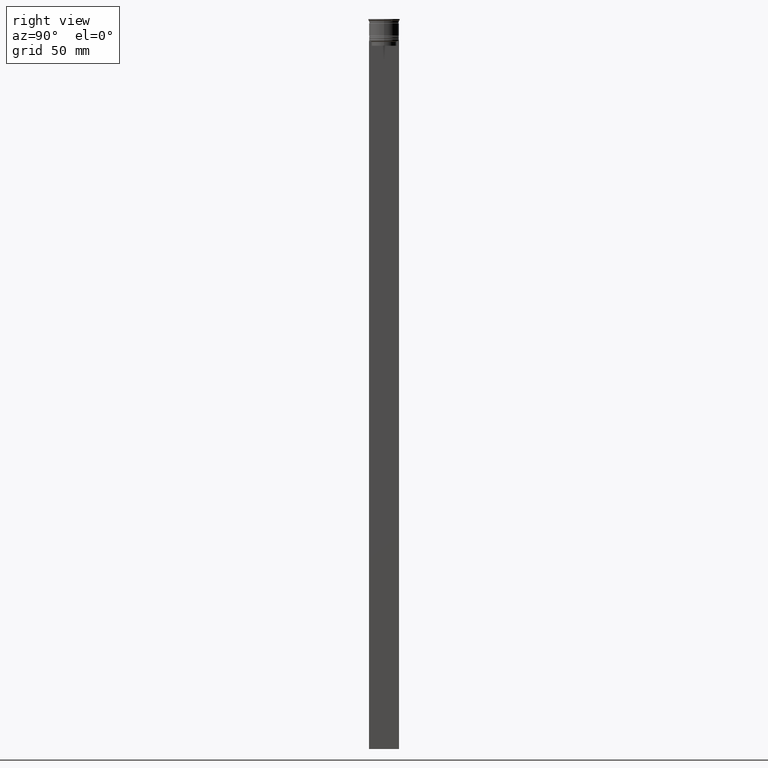
[diagram: clean part render]
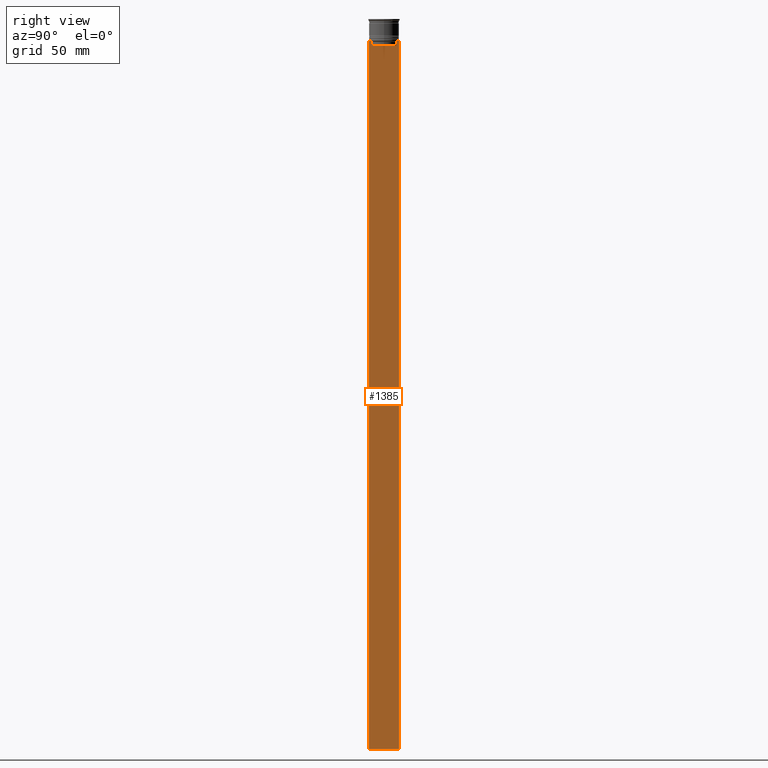
[diagram: same view with one face highlighted and labeled with its STEP entity id]
A machine part, right view. The second image highlights one B-rep face of the part: STEP entity #1385.
In plain terms, the highlighted planar face has unit normal (-1, 0, 0).
Its self-contained STEP definition (entity closure, byte-faithful):
#11 = LINE ( 'NONE', #25, #2447 ) ;
#21 = VECTOR ( 'NONE', #2558, 1000.000000000000000 ) ;
#25 = CARTESIAN_POINT ( 'NONE',  ( 0.5000000000000000000, -9.500000000000001776, -14.00000000000000178 ) ) ;
#28 = B_SPLINE_CURVE_WITH_KNOTS ( 'NONE', 3,
 ( #229, #632, #2486, #1242 ),
 .UNSPECIFIED., .F., .F.,
 ( 4, 4 ),
 ( 0.01426761478740281447, 0.01497538974438914448 ),
 .UNSPECIFIED. ) ;
#53 = EDGE_CURVE ( 'NONE', #308, #1341, #11, .T. ) ;
#92 = EDGE_LOOP ( 'NONE', ( #1950, #1240, #207, #1700, #2353, #368, #998, #547, #2088, #1033, #2392, #200 ) ) ;
#102 = VERTEX_POINT ( 'NONE', #1649 ) ;
#131 = EDGE_CURVE ( 'NONE', #255, #2475, #28, .T. ) ;
#172 = CARTESIAN_POINT ( 'NONE',  ( 0.5000000000000000000, 9.499999999999998224, -14.00000000000000178 ) ) ;
#196 = CARTESIAN_POINT ( 'NONE',  ( 0.5000000000000000000, -7.884161337770803080, -17.00000000000000000 ) ) ;
#200 = ORIENTED_EDGE ( 'NONE', *, *, #53, .T. ) ;
#205 = FACE_OUTER_BOUND ( 'NONE', #92, .T. ) ;
#207 = ORIENTED_EDGE ( 'NONE', *, *, #2519, .T. ) ;
#229 = CARTESIAN_POINT ( 'NONE',  ( 0.5000000000000000000, 8.385105843100605583, -14.00000000000000178 ) ) ;
#237 = DIRECTION ( 'NONE',  ( 0.000000000000000000, 0.000000000000000000, -1.000000000000000000 ) ) ;
#255 = VERTEX_POINT ( 'NONE', #1628 ) ;
#300 = CARTESIAN_POINT ( 'NONE',  ( 0.5000000000000000000, 7.884161337770803080, 0.000000000000000000 ) ) ;
#307 = VERTEX_POINT ( 'NONE', #196 ) ;
#308 = VERTEX_POINT ( 'NONE', #172 ) ;
#312 = CARTESIAN_POINT ( 'NONE',  ( 0.5000000000000000000, -9.500000000000001776, -14.00000000000000178 ) ) ;
#314 = CARTESIAN_POINT ( 'NONE',  ( 0.5000000000000000000, 7.899999999999994138, -17.00000000000000000 ) ) ;
#319 = VERTEX_POINT ( 'NONE', #2438 ) ;
#330 = VECTOR ( 'NONE', #507, 1000.000000000000000 ) ;
#351 = VERTEX_POINT ( 'NONE', #1461 ) ;
#364 = EDGE_CURVE ( 'NONE', #307, #2237, #1434, .T. ) ;
#368 = ORIENTED_EDGE ( 'NONE', *, *, #610, .T. ) ;
#409 = DIRECTION ( 'NONE',  ( 0.000000000000000000, 0.000000000000000000, 1.000000000000000000 ) ) ;
#412 = LINE ( 'NONE', #649, #1315 ) ;
#424 = VECTOR ( 'NONE', #1655, 1000.000000000000000 ) ;
#486 = EDGE_CURVE ( 'NONE', #1341, #255, #920, .T. ) ;
#507 = DIRECTION ( 'NONE',  ( 0.000000000000000000, -1.000000000000000000, 0.000000000000000000 ) ) ;
#547 = ORIENTED_EDGE ( 'NONE', *, *, #1475, .T. ) ;
#549 = CARTESIAN_POINT ( 'NONE',  ( 0.5000000000000000000, -7.884161337770803080, -14.50000000000000000 ) ) ;
#561 = CARTESIAN_POINT ( 'NONE',  ( 0.5000000000000000000, -7.884161337770803080, -14.50000000000000000 ) ) ;
#570 = PLANE ( 'NONE',  #1073 ) ;
#603 = CARTESIAN_POINT ( 'NONE',  ( 0.5000000000000000000, 9.499999999999998224, -464.0000000000000000 ) ) ;
#610 = EDGE_CURVE ( 'NONE', #2237, #2618, #2251, .T. ) ;
#632 = CARTESIAN_POINT ( 'NONE',  ( 0.5000000000000000000, 8.218133718559618828, -14.16667606394327983 ) ) ;
#649 = CARTESIAN_POINT ( 'NONE',  ( 0.5000000000000000000, 9.499999999999998224, 5.026297590440445440 ) ) ;
#660 = LINE ( 'NONE', #300, #2523 ) ;
#710 = EDGE_CURVE ( 'NONE', #2618, #351, #1098, .T. ) ;
#774 = CARTESIAN_POINT ( 'NONE',  ( 0.5000000000000000000, -8.051152795888546265, -14.33334334204685057 ) ) ;
#920 = LINE ( 'NONE', #312, #330 ) ;
#923 = EDGE_CURVE ( 'NONE', #319, #1611, #1526, .T. ) ;
#998 = ORIENTED_EDGE ( 'NONE', *, *, #710, .T. ) ;
#1033 = ORIENTED_EDGE ( 'NONE', *, *, #923, .T. ) ;
#1073 = AXIS2_PLACEMENT_3D ( 'NONE', #2263, #2422, #409 ) ;
#1098 = LINE ( 'NONE', #1905, #1849 ) ;
#1124 = CARTESIAN_POINT ( 'NONE',  ( 0.5000000000000000000, 7.884161337770803080, -14.50000000000000000 ) ) ;
#1147 = CARTESIAN_POINT ( 'NONE',  ( 0.5000000000000000000, 9.386692708297204035, -14.00000000000000178 ) ) ;
#1217 = DIRECTION ( 'NONE',  ( 0.000000000000000000, -1.000000000000000000, 0.000000000000000000 ) ) ;
#1240 = ORIENTED_EDGE ( 'NONE', *, *, #131, .T. ) ;
#1242 = CARTESIAN_POINT ( 'NONE',  ( 0.5000000000000000000, 7.884161337770803080, -14.50000000000000000 ) ) ;
#1298 = DIRECTION ( 'NONE',  ( 0.000000000000000000, 0.000000000000000000, -1.000000000000000000 ) ) ;
#1315 = VECTOR ( 'NONE', #2295, 1000.000000000000000 ) ;
#1341 = VERTEX_POINT ( 'NONE', #1147 ) ;
#1359 = CARTESIAN_POINT ( 'NONE',  ( 0.5000000000000000000, -8.218133703942523738, -14.16667607853445787 ) ) ;
#1362 = CARTESIAN_POINT ( 'NONE',  ( 0.5000000000000000000, -9.500000000000001776, -464.0000000000000000 ) ) ;
#1376 = DIRECTION ( 'NONE',  ( 0.000000000000000000, -1.000000000000000000, 0.000000000000000000 ) ) ;
#1385 = ADVANCED_FACE ( 'NONE', ( #205 ), #570, .F. ) ;
#1434 = LINE ( 'NONE', #1904, #424 ) ;
#1448 = LINE ( 'NONE', #2507, #2271 ) ;
#1461 = CARTESIAN_POINT ( 'NONE',  ( 0.5000000000000000000, -9.386692708297204035, -14.00000000000000178 ) ) ;
#1463 = CARTESIAN_POINT ( 'NONE',  ( 0.5000000000000000000, -9.500000000000001776, -14.00000000000000178 ) ) ;
#1475 = EDGE_CURVE ( 'NONE', #351, #2043, #1580, .T. ) ;
#1526 = LINE ( 'NONE', #1362, #2580 ) ;
#1580 = LINE ( 'NONE', #2408, #2113 ) ;
#1611 = VERTEX_POINT ( 'NONE', #603 ) ;
#1628 = CARTESIAN_POINT ( 'NONE',  ( 0.5000000000000000000, 8.385105843100605583, -14.00000000000000178 ) ) ;
#1649 = CARTESIAN_POINT ( 'NONE',  ( 0.5000000000000000000, 7.884161337770803080, -17.00000000000000000 ) ) ;
#1655 = DIRECTION ( 'NONE',  ( -0.000000000000000000, -0.000000000000000000, 1.000000000000000000 ) ) ;
#1660 = CARTESIAN_POINT ( 'NONE',  ( 0.5000000000000000000, -8.385105843100605583, -14.00000000000000178 ) ) ;
#1668 = DIRECTION ( 'NONE',  ( 0.000000000000000000, -1.000000000000000000, 0.000000000000000000 ) ) ;
#1700 = ORIENTED_EDGE ( 'NONE', *, *, #2129, .T. ) ;
#1734 = DIRECTION ( 'NONE',  ( 0.000000000000000000, 1.000000000000000000, 0.000000000000000000 ) ) ;
#1849 = VECTOR ( 'NONE', #1668, 1000.000000000000000 ) ;
#1904 = CARTESIAN_POINT ( 'NONE',  ( 0.5000000000000000000, -7.884161337770803080, 0.000000000000000000 ) ) ;
#1905 = CARTESIAN_POINT ( 'NONE',  ( 0.5000000000000000000, -9.500000000000001776, -14.00000000000000178 ) ) ;
#1950 = ORIENTED_EDGE ( 'NONE', *, *, #486, .T. ) ;
#1994 = CARTESIAN_POINT ( 'NONE',  ( 0.5000000000000000000, -8.385105843100605583, -14.00000000000000178 ) ) ;
#2005 = EDGE_CURVE ( 'NONE', #2043, #319, #1448, .T. ) ;
#2043 = VERTEX_POINT ( 'NONE', #1463 ) ;
#2088 = ORIENTED_EDGE ( 'NONE', *, *, #2005, .T. ) ;
#2113 = VECTOR ( 'NONE', #1376, 1000.000000000000000 ) ;
#2129 = EDGE_CURVE ( 'NONE', #102, #307, #2517, .T. ) ;
#2237 = VERTEX_POINT ( 'NONE', #549 ) ;
#2251 = B_SPLINE_CURVE_WITH_KNOTS ( 'NONE', 3,
 ( #561, #774, #1359, #1994 ),
 .UNSPECIFIED., .F., .F.,
 ( 4, 4 ),
 ( 0.03673372442973153046, 0.03744389749832059688 ),
 .UNSPECIFIED. ) ;
#2263 = CARTESIAN_POINT ( 'NONE',  ( 0.5000000000000000000, -9.500000000000001776, 5.026297590440445440 ) ) ;
#2271 = VECTOR ( 'NONE', #237, 1000.000000000000000 ) ;
#2295 = DIRECTION ( 'NONE',  ( 0.000000000000000000, 0.000000000000000000, -1.000000000000000000 ) ) ;
#2353 = ORIENTED_EDGE ( 'NONE', *, *, #364, .T. ) ;
#2392 = ORIENTED_EDGE ( 'NONE', *, *, #2428, .F. ) ;
#2408 = CARTESIAN_POINT ( 'NONE',  ( 0.5000000000000000000, -9.500000000000001776, -14.00000000000000178 ) ) ;
#2422 = DIRECTION ( 'NONE',  ( -1.000000000000000000, 0.000000000000000000, 0.000000000000000000 ) ) ;
#2428 = EDGE_CURVE ( 'NONE', #308, #1611, #412, .T. ) ;
#2438 = CARTESIAN_POINT ( 'NONE',  ( 0.5000000000000000000, -9.500000000000001776, -464.0000000000000000 ) ) ;
#2447 = VECTOR ( 'NONE', #1217, 1000.000000000000000 ) ;
#2475 = VERTEX_POINT ( 'NONE', #1124 ) ;
#2486 = CARTESIAN_POINT ( 'NONE',  ( 0.5000000000000000000, 8.051152811434374001, -14.33334332653219079 ) ) ;
#2507 = CARTESIAN_POINT ( 'NONE',  ( 0.5000000000000000000, -9.500000000000001776, 5.026297590440445440 ) ) ;
#2517 = LINE ( 'NONE', #314, #21 ) ;
#2519 = EDGE_CURVE ( 'NONE', #2475, #102, #660, .T. ) ;
#2523 = VECTOR ( 'NONE', #1298, 1000.000000000000000 ) ;
#2558 = DIRECTION ( 'NONE',  ( 0.000000000000000000, -1.000000000000000000, 0.000000000000000000 ) ) ;
#2580 = VECTOR ( 'NONE', #1734, 1000.000000000000000 ) ;
#2618 = VERTEX_POINT ( 'NONE', #1660 ) ;